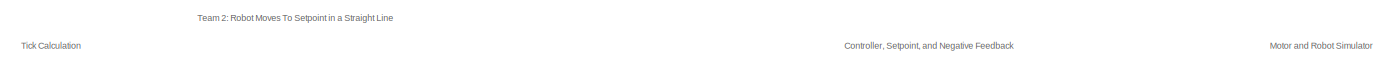
[diagram: root canvas - part 1/3, top center region]
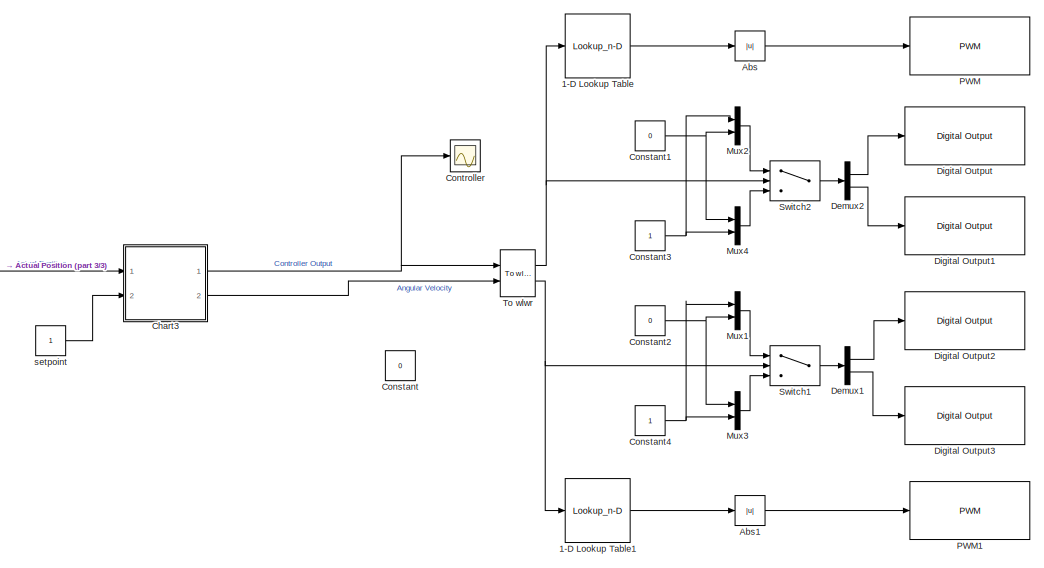
[diagram: root canvas - part 2/3, right side, full height]
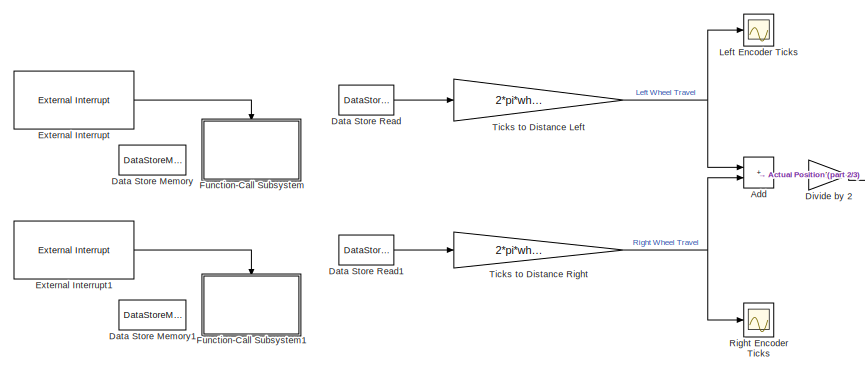
[diagram: root canvas - part 3/3, middle left region]
MODEL slx_72761a937761
KIND model
CONFIG AbsTol = auto
CONFIG EnableMultiTasking = off
CONFIG FixedStep = 0.01
CONFIG MaxStep = auto
CONFIG MinStep = auto
CONFIG RelTol = 1e-3
CONFIG SampleTimeConstraint = Unconstrained
CONFIG SolverName = FixedStepDiscrete
CONFIG StartTime = 0.0
CONFIG StopTime = 10
BLOCK [Lookup_n-D] 1-D Lookup Table
  BreakpointsForDimension1 = WheelSpeed
  InputPortMap = u0
  InternalRulePriority = Speed
  NumberOfTableDimensions = 1
  Ports = [1, 1]
  RndMeth = Simplest
  Table = InputPWM
BLOCK [Lookup_n-D] 1-D Lookup Table1
  BreakpointsForDimension1 = WheelSpeed
  InputPortMap = u0
  InternalRulePriority = Speed
  NumberOfTableDimensions = 1
  Ports = [1, 1]
  RndMeth = Simplest
  Table = InputPWM
BLOCK [Abs] Abs
  SaturateOnIntegerOverflow = off
BLOCK [Abs] Abs1
  SaturateOnIntegerOverflow = off
BLOCK [Sum] Add
  IconShape = rectangular
  Ports = [2, 1]
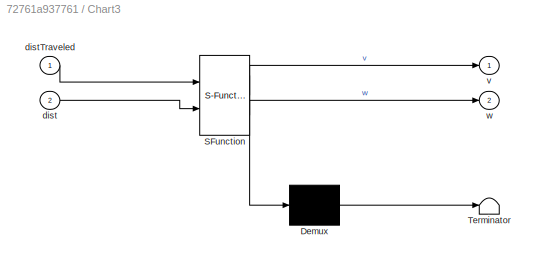
BLOCK [SubSystem] Chart3
  ErrorFcn = Stateflow.Translate.translate
  PermitHierarchicalResolution = ExplicitOnly
  Ports = [2, 2]
  RequestExecContextInheritance = off
  SFBlockType = Chart
  TreatAsAtomicUnit = on
BLOCK [Demux] Chart3/ Demux 
  Outputs = 1
  Ports = [1, 1]
BLOCK [S-Function] Chart3/ SFunction 
  EnableBusSupport = on
  FunctionName = sf_sfun
  PortCounts = [2 3]
  Ports = [2, 3]
  SFcnIsStateOwnerBlock = off
  SFunctionDeploymentMode = off
  Tag = Stateflow S-Function 4
BLOCK [Terminator] Chart3/ Terminator 
BLOCK [Inport] Chart3/dist
  Port = 2
BLOCK [Inport] Chart3/distTraveled
BLOCK [Outport] Chart3/v
BLOCK [Outport] Chart3/w
  Port = 2
BLOCK [Constant] Constant
  Value = 0
BLOCK [Constant] Constant1
  Value = 0
BLOCK [Constant] Constant2
  Value = 0
BLOCK [Constant] Constant3
BLOCK [Constant] Constant4
BLOCK [Scope] Controller
  Floating = off
  NumInputPorts = 1
  Ports = [1]
  ScopeSpecificationString = Simulink.scopes.TimeScopeBlockCfg('CurrentConfiguration', extmgr.ConfigurationSet(extmgr.Configuration('Core','General UI',true),extmgr.Configuration('Core','Source UI',true),extmgr.Configuration('Sources','WiredSimulink',true,'DataLoggingVariableName','ScopeData1'),extmgr.Configuration('Visuals','Time Domain',true,'SerializedDisplays',{struct('MinYLimReal','-0.12533','MaxYLimReal','0.5917','YLabe...<+1401ch>
BLOCK [DataStoreMemory] Data Store Memory
  DataStoreName = LeftTicks
  ShowAdditionalParam = off
  WriteAfterWriteMsg = warning
BLOCK [DataStoreMemory] Data Store Memory1
  DataStoreName = RightTicks
  ShowAdditionalParam = off
  WriteAfterWriteMsg = warning
BLOCK [DataStoreRead] Data Store Read
  DataStoreName = LeftTicks
  IndexOptions = Index vector (dialog)
  Indices = 1
  OutputSizes = 1
  Ports = [0, 1]
BLOCK [DataStoreRead] Data Store Read1
  DataStoreName = RightTicks
  IndexOptions = Index vector (dialog)
  Indices = 1
  OutputSizes = 1
  Ports = [0, 1]
BLOCK [Demux] Demux1
  Outputs = 2
  Ports = [1, 2]
BLOCK [Demux] Demux2
  Outputs = 2
  Ports = [1, 2]
BLOCK [Reference] Digital Output  REF=arduinolib/Digital Output
  Ports = [1]
  SourceBlock = arduinolib/Digital Output
  SourceProductBaseCode = ARDUINO
  SourceType = Arduino Digital Output
BLOCK [Reference] Digital Output1  REF=arduinolib/Digital Output
  Ports = [1]
  SourceBlock = arduinolib/Digital Output
  SourceProductBaseCode = ARDUINO
  SourceType = Arduino Digital Output
BLOCK [Reference] Digital Output2  REF=arduinolib/Digital Output
  Ports = [1]
  SourceBlock = arduinolib/Digital Output
  SourceProductBaseCode = ARDUINO
  SourceType = Arduino Digital Output
BLOCK [Reference] Digital Output3  REF=arduinolib/Digital Output
  Ports = [1]
  SourceBlock = arduinolib/Digital Output
  SourceProductBaseCode = ARDUINO
  SourceType = Arduino Digital Output
BLOCK [Gain] Divide by 2
  Gain = 0.5
BLOCK [Reference] External Interrupt  REF=arduinolib/External Interrupt
  Ports = [0, 1]
  SourceBlock = arduinolib/External Interrupt
  SourceProductBaseCode = ARDUINO
  SourceType = Arduino Interrupt Block
BLOCK [Reference] External Interrupt1  REF=arduinolib/External Interrupt
  Ports = [0, 1]
  SourceBlock = arduinolib/External Interrupt
  SourceProductBaseCode = ARDUINO
  SourceType = Arduino Interrupt Block
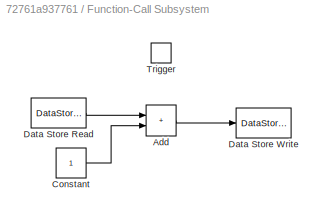
BLOCK [SubSystem] Function-Call Subsystem
  Ports = [0, 0, 0, 1]
  RequestExecContextInheritance = off
  TreatAsAtomicUnit = on
BLOCK [Sum] Function-Call Subsystem/Add
  IconShape = rectangular
  Ports = [2, 1]
BLOCK [Constant] Function-Call Subsystem/Constant
BLOCK [DataStoreRead] Function-Call Subsystem/Data Store Read
  DataStoreName = LeftTicks
  IndexOptions = Index vector (dialog)
  Indices = 1
  OutputSizes = 1
  Ports = [0, 1]
BLOCK [DataStoreWrite] Function-Call Subsystem/Data Store Write
  DataStoreName = LeftTicks
  IndexOptions = Index vector (dialog)
  Indices = 1
  OutputSizes = 1
  Ports = [1]
BLOCK [TriggerPort] Function-Call Subsystem/Trigger
  Ports = []
  StatesWhenEnabling = held
  TriggerType = function-call
  VariantControl = (inherit)
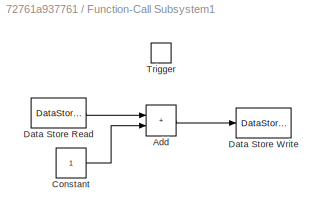
BLOCK [SubSystem] Function-Call Subsystem1
  Ports = [0, 0, 0, 1]
  RequestExecContextInheritance = off
  TreatAsAtomicUnit = on
BLOCK [Sum] Function-Call Subsystem1/Add
  IconShape = rectangular
  Ports = [2, 1]
BLOCK [Constant] Function-Call Subsystem1/Constant
BLOCK [DataStoreRead] Function-Call Subsystem1/Data Store Read
  DataStoreName = RightTicks
  IndexOptions = Index vector (dialog)
  Indices = 1
  OutputSizes = 1
  Ports = [0, 1]
BLOCK [DataStoreWrite] Function-Call Subsystem1/Data Store Write
  DataStoreName = RightTicks
  IndexOptions = Index vector (dialog)
  Indices = 1
  OutputSizes = 1
  Ports = [1]
BLOCK [TriggerPort] Function-Call Subsystem1/Trigger
  Ports = []
  StatesWhenEnabling = held
  TriggerType = function-call
  VariantControl = (inherit)
BLOCK [Scope] Left Encoder Ticks
  Floating = off
  NumInputPorts = 1
  Ports = [1]
  ScopeSpecificationString = Simulink.scopes.TimeScopeBlockCfg('CurrentConfiguration', extmgr.ConfigurationSet(extmgr.Configuration('Core','General UI',true),extmgr.Configuration('Core','Source UI',true),extmgr.Configuration('Sources','WiredSimulink',true,'DataLoggingVariableName','ScopeData1'),extmgr.Configuration('Visuals','Time Domain',true,'SerializedDisplays',{struct('MinYLimReal','-0.00343','MaxYLimReal','0.00392','YLab...<+1484ch>
BLOCK [Mux] Mux1
  DisplayOption = bar
  Inputs = 2
  Ports = [2, 1]
BLOCK [Mux] Mux2
  DisplayOption = bar
  Inputs = 2
  Ports = [2, 1]
BLOCK [Mux] Mux3
  DisplayOption = bar
  Inputs = 2
  Ports = [2, 1]
BLOCK [Mux] Mux4
  DisplayOption = bar
  Inputs = 2
  Ports = [2, 1]
BLOCK [Reference] PWM  REF=arduinolib/PWM
  Ports = [1]
  SourceBlock = arduinolib/PWM
  SourceProductBaseCode = ARDUINO
  SourceType = Arduino PWM
BLOCK [Reference] PWM1  REF=arduinolib/PWM
  Ports = [1]
  SourceBlock = arduinolib/PWM
  SourceProductBaseCode = ARDUINO
  SourceType = Arduino PWM
BLOCK [Scope] Right Encoder Ticks
  Floating = off
  NumInputPorts = 1
  Ports = [1]
  ScopeSpecificationString = Simulink.scopes.TimeScopeBlockCfg('CurrentConfiguration', extmgr.ConfigurationSet(extmgr.Configuration('Core','General UI',true),extmgr.Configuration('Core','Source UI',true),extmgr.Configuration('Sources','WiredSimulink',true,'DataLoggingVariableName','ScopeData3'),extmgr.Configuration('Visuals','Time Domain',true,'SerializedDisplays',{struct('MinYLimReal','-12.375','MaxYLimReal','111.375','YLabe...<+1549ch>
BLOCK [Switch] Switch1
  Criteria = u2 > Threshold
  InputSameDT = off
  SaturateOnIntegerOverflow = off
BLOCK [Switch] Switch2
  Criteria = u2 > Threshold
  InputSameDT = off
  SaturateOnIntegerOverflow = off
BLOCK [Gain] Ticks to Distance Left
  Gain = 2*pi*wheelR/ticksPerRot
BLOCK [Gain] Ticks to Distance Right
  Gain = 2*pi*wheelR/ticksPerRot
BLOCK [Reference] To wlwr  REF=mobileRoboticsTrainingLib/To wlwr
  Ports = [2, 2]
  SourceBlock = mobileRoboticsTrainingLib/To wlwr
  SourceProductName = Mobile Robotics Training Library
  SourceType = To wlwr
BLOCK [Constant] setpoint
ANNOTATION (root): Team 2: Robot Moves To Setpoint in a Straight Line
ANNOTATION (root): Controller, Setpoint, and Negative Feedback
ANNOTATION (root): Motor and Robot Simulator
ANNOTATION (root): Tick Calculation
LINE 1-D Lookup Table1:1 -> Abs1:1
LINE 1-D Lookup Table:1 -> Abs:1
LINE Abs1:1 -> PWM1:1
LINE Abs:1 -> PWM:1
LINE Add:1 -> Divide by 2:1
NET Chart3:1 -> Controller:1, To wlwr:1
LINE Chart3:2 -> To wlwr:2
NET Constant1:1 -> Mux2:2, Mux4:1
NET Constant2:1 -> Mux1:2, Mux3:1
NET Constant3:1 -> Mux2:1, Mux4:2
NET Constant4:1 -> Mux1:1, Mux3:2
LINE Data Store Read1:1 -> Ticks to Distance Right:1
LINE Data Store Read:1 -> Ticks to Distance Left:1
LINE Demux1:1 -> Digital Output2:1
LINE Demux1:2 -> Digital Output3:1
LINE Demux2:1 -> Digital Output:1
LINE Demux2:2 -> Digital Output1:1
LINE Divide by 2:1 -> Chart3:1
LINE External Interrupt1:1 -> Function-Call Subsystem1:trigger
LINE External Interrupt:1 -> Function-Call Subsystem:trigger
LINE Function-Call Subsystem/Add:1 -> Function-Call Subsystem/Data Store Write:1
LINE Function-Call Subsystem/Constant:1 -> Function-Call Subsystem/Add:2
LINE Function-Call Subsystem/Data Store Read:1 -> Function-Call Subsystem/Add:1
LINE Function-Call Subsystem1/Add:1 -> Function-Call Subsystem1/Data Store Write:1
LINE Function-Call Subsystem1/Constant:1 -> Function-Call Subsystem1/Add:2
LINE Function-Call Subsystem1/Data Store Read:1 -> Function-Call Subsystem1/Add:1
LINE Mux1:1 -> Switch1:1
LINE Mux2:1 -> Switch2:1
LINE Mux3:1 -> Switch1:3
LINE Mux4:1 -> Switch2:3
LINE Switch1:1 -> Demux1:1
LINE Switch2:1 -> Demux2:1
NET Ticks to Distance Left:1 -> Add:1, Left Encoder Ticks:1
NET Ticks to Distance Right:1 -> Add:2, Right Encoder Ticks:1
NET To wlwr:1 -> 1-D Lookup Table:1, Switch2:2
NET To wlwr:2 -> 1-D Lookup Table1:1, Switch1:2
LINE setpoint:1 -> Chart3:2
note: NET lines group one-source signal fan-out (src -> all destinations, sorted); 1:1 wires keep LINE
CHART Chart3 states=2 transitions=2
  STATE_LABEL 'MoveForward\nentry:\nv = 0.2;\nw = 0.1;'
  STATE_LABEL 'Stop\nentry:\nv = 0;\nw = 0;'
CHART  states=0 transitions=0
